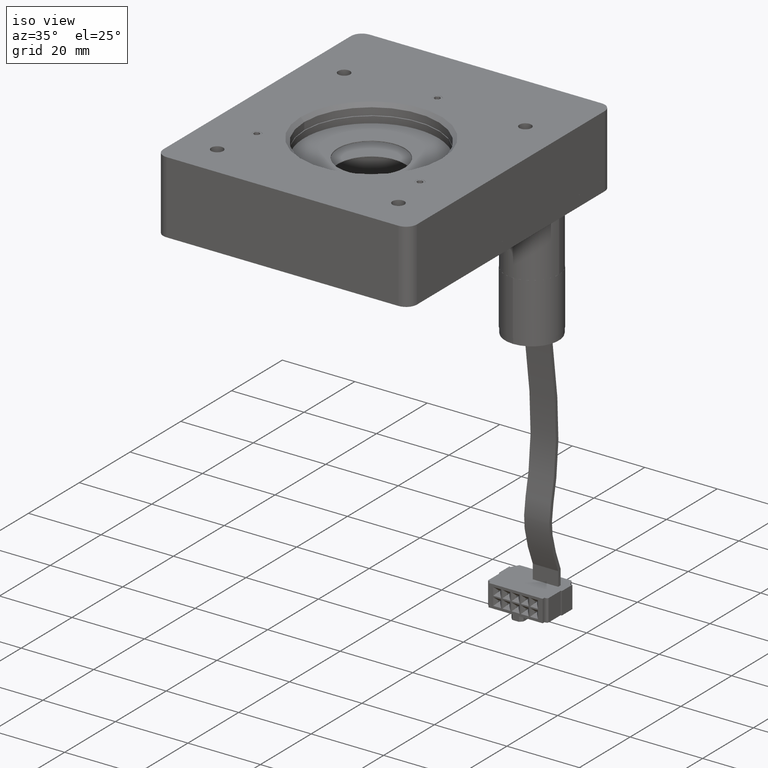
[diagram: clean part render]
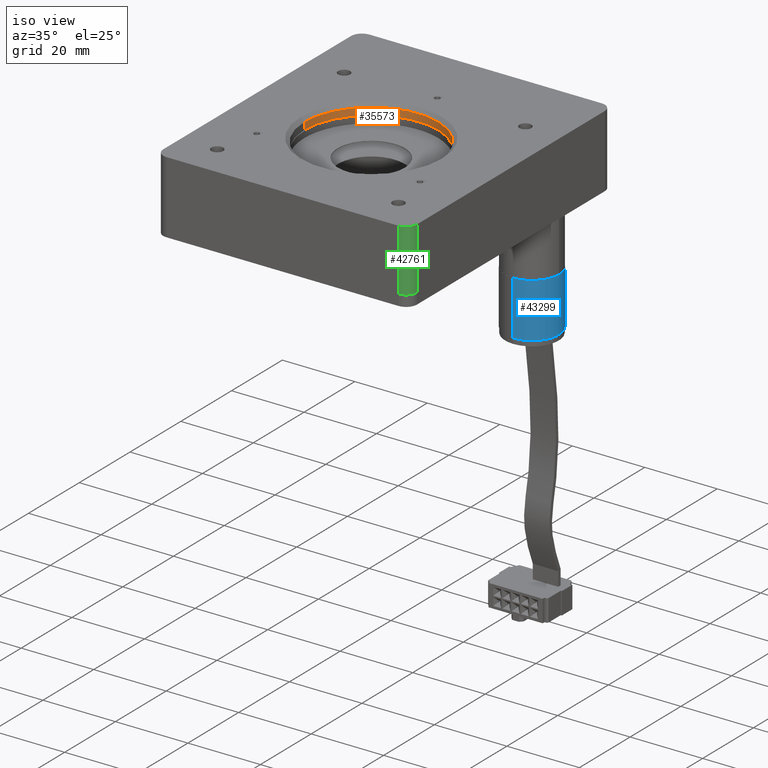
[diagram: same view with three faces highlighted in distinct colors, each labeled with its STEP entity id]
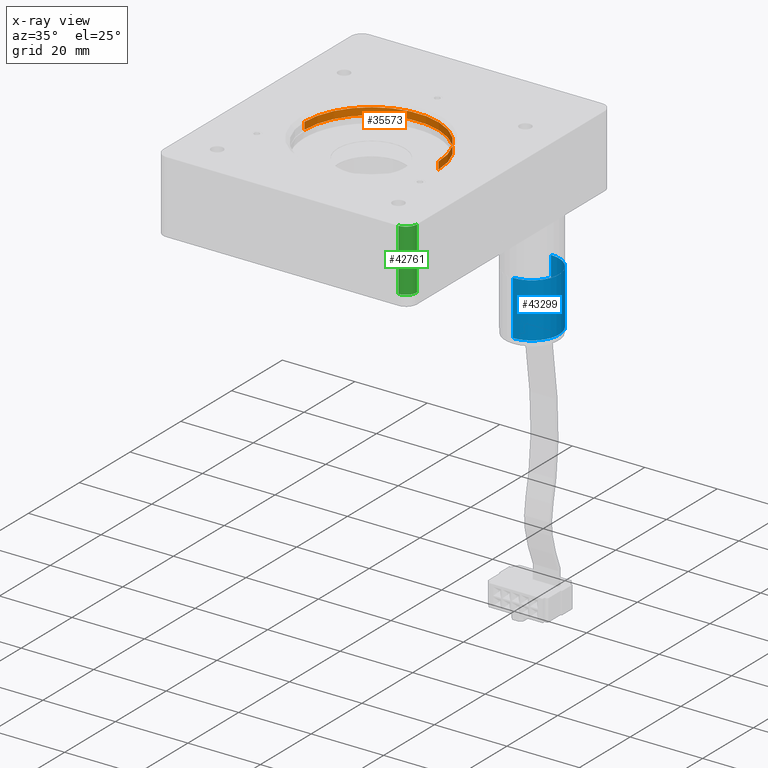
[diagram: x-ray of the same camera — body ghosted, the three highlighted faces saturated]
A machine part, iso view with three faces highlighted in distinct colors.
The next image is the same camera in x-ray (body ghosted, the three faces saturated) — at least one of them is partly hidden behind the body in this view.
Their STEP definitions:

[orange] entity #35573 — the highlighted cylindrical surface (partial cylindrical patch) has radius 18.5 mm, axis along (-0, -0, -1).
#2443 = AXIS2_PLACEMENT_3D ( 'NONE', #43356, #16360, #8199 ) ;
#2696 = CARTESIAN_POINT ( 'NONE',  ( -31.41903274966292900, 2.163028059219103600, 17.00100000002637700 ) ) ;
#3248 = LINE ( 'NONE', #2696, #26992 ) ;
#3707 = CIRCLE ( 'NONE', #2443, 18.49999999999999600 ) ;
#4503 = DIRECTION ( 'NONE',  ( -0.0000000000000000000, -0.0000000000000000000, 1.000000000000000000 ) ) ;
#7563 = CARTESIAN_POINT ( 'NONE',  ( -31.41903274966292900, 2.163028059219103600, 16.00000000002638200 ) ) ;
#8199 = DIRECTION ( 'NONE',  ( -1.000000000000000000, 0.0000000000000000000, 0.0000000000000000000 ) ) ;
#8612 = LINE ( 'NONE', #22527, #9819 ) ;
#9302 = AXIS2_PLACEMENT_3D ( 'NONE', #23959, #4503, #31823 ) ;
#9819 = VECTOR ( 'NONE', #18947, 1000.000000000000000 ) ;
#9863 = CIRCLE ( 'NONE', #9302, 18.50000000000000000 ) ;
#12003 = FACE_OUTER_BOUND ( 'NONE', #28861, .T. ) ;
#13663 = EDGE_CURVE ( 'NONE', #48982, #31465, #3248, .T. ) ;
#14546 = EDGE_CURVE ( 'NONE', #26986, #31465, #3707, .T. ) ;
#15108 = EDGE_CURVE ( 'NONE', #44031, #26986, #8612, .T. ) ;
#15971 = CARTESIAN_POINT ( 'NONE',  ( -31.41903274966292900, 2.163028059219103600, 14.00000000002637400 ) ) ;
#16360 = DIRECTION ( 'NONE',  ( -0.0000000000000000000, -0.0000000000000000000, 1.000000000000000000 ) ) ;
#16832 = DIRECTION ( 'NONE',  ( -0.0000000000000000000, -0.0000000000000000000, -1.000000000000000000 ) ) ;
#17904 = ORIENTED_EDGE ( 'NONE', *, *, #15108, .F. ) ;
#18947 = DIRECTION ( 'NONE',  ( -0.0000000000000000000, -0.0000000000000000000, -1.000000000000000000 ) ) ;
#19038 = ORIENTED_EDGE ( 'NONE', *, *, #14546, .F. ) ;
#21099 = DIRECTION ( 'NONE',  ( -1.000000000000000000, 0.0000000000000000000, 0.0000000000000000000 ) ) ;
#21778 = DIRECTION ( 'NONE',  ( -0.0000000000000000000, -0.0000000000000000000, -1.000000000000000000 ) ) ;
#22527 = CARTESIAN_POINT ( 'NONE',  ( 5.580967250337066000, 2.163028059219105800, 17.00100000002637700 ) ) ;
#23959 = CARTESIAN_POINT ( 'NONE',  ( -12.91903274966293200, 2.163028059219103600, 16.00000000002638200 ) ) ;
#26986 = VERTEX_POINT ( 'NONE', #30779 ) ;
#26992 = VECTOR ( 'NONE', #21778, 1000.000000000000000 ) ;
#28820 = EDGE_CURVE ( 'NONE', #44031, #48982, #9863, .T. ) ;
#28861 = EDGE_LOOP ( 'NONE', ( #17904, #46529, #42979, #19038 ) ) ;
#30558 = AXIS2_PLACEMENT_3D ( 'NONE', #48731, #16832, #21099 ) ;
#30669 = CARTESIAN_POINT ( 'NONE',  ( 5.580967250337066000, 2.163028059219105800, 16.00000000002638200 ) ) ;
#30779 = CARTESIAN_POINT ( 'NONE',  ( 5.580967250337066000, 2.163028059219105800, 14.00000000002637400 ) ) ;
#31465 = VERTEX_POINT ( 'NONE', #15971 ) ;
#31823 = DIRECTION ( 'NONE',  ( 1.000000000000000000, 0.0000000000000000000, 0.0000000000000000000 ) ) ;
#35573 = ADVANCED_FACE ( 'NONE', ( #12003 ), #49857, .F. ) ;
#42979 = ORIENTED_EDGE ( 'NONE', *, *, #13663, .T. ) ;
#43356 = CARTESIAN_POINT ( 'NONE',  ( -12.91903274966293200, 2.163028059219103600, 14.00000000002637400 ) ) ;
#44031 = VERTEX_POINT ( 'NONE', #30669 ) ;
#46529 = ORIENTED_EDGE ( 'NONE', *, *, #28820, .T. ) ;
#48731 = CARTESIAN_POINT ( 'NONE',  ( -12.91903274966293200, 2.163028059219103600, 17.00100000002637700 ) ) ;
#48982 = VERTEX_POINT ( 'NONE', #7563 ) ;
#49857 = CYLINDRICAL_SURFACE ( 'NONE', #30558, 18.49999999999999600 ) ;

[blue] entity #43299 — the highlighted cylindrical surface (edge-blend (fillet) strip) has radius 7.5 mm, axis along (0, -0, -1).
#225 = DIRECTION ( 'NONE',  ( -1.063288424787887300E-017, 6.030208312509493000E-017, 1.000000000000000000 ) ) ;
#983 = CARTESIAN_POINT ( 'NONE',  ( 9.651920938367990000, 25.72928064321712700, -35.89999999997362300 ) ) ;
#1287 = AXIS2_PLACEMENT_3D ( 'NONE', #15392, #46428, #27639 ) ;
#2620 = VECTOR ( 'NONE', #20012, 1000.000000000000000 ) ;
#2884 = FACE_OUTER_BOUND ( 'NONE', #12566, .T. ) ;
#3612 = DIRECTION ( 'NONE',  ( -3.006854025026460400E-015, 1.000000000000000000, 0.0000000000000000000 ) ) ;
#6778 = CARTESIAN_POINT ( 'NONE',  ( 9.651920938367990000, 25.72928064321711300, -20.89999999997357700 ) ) ;
#7213 = DIRECTION ( 'NONE',  ( 3.006854025026460400E-015, -1.000000000000000000, 0.0000000000000000000 ) ) ;
#8038 = CARTESIAN_POINT ( 'NONE',  ( 9.651920938367968700, 33.22928064321712300, -20.89999999997357700 ) ) ;
#10527 = DIRECTION ( 'NONE',  ( 1.063288424787887300E-017, -6.030208312509493000E-017, -1.000000000000000000 ) ) ;
#10956 = DIRECTION ( 'NONE',  ( 1.063288424787887300E-017, -6.030208312509493000E-017, -1.000000000000000000 ) ) ;
#11705 = AXIS2_PLACEMENT_3D ( 'NONE', #8038, #225, #3612 ) ;
#12160 = CARTESIAN_POINT ( 'NONE',  ( 9.651920938367945600, 40.72928064321713700, -20.89999999997357700 ) ) ;
#12547 = VECTOR ( 'NONE', #10527, 1000.000000000000000 ) ;
#12566 = EDGE_LOOP ( 'NONE', ( #49177, #30601, #32268, #36492 ) ) ;
#13879 = EDGE_CURVE ( 'NONE', #29125, #16137, #27572, .T. ) ;
#15062 = CIRCLE ( 'NONE', #1287, 7.500000000000013300 ) ;
#15392 = CARTESIAN_POINT ( 'NONE',  ( 9.651920938367968700, 33.22928064321712300, -35.89999999997362300 ) ) ;
#16137 = VERTEX_POINT ( 'NONE', #26753 ) ;
#17440 = LINE ( 'NONE', #6778, #12547 ) ;
#20012 = DIRECTION ( 'NONE',  ( 1.063288424787887300E-017, -6.030208312509493000E-017, -1.000000000000000000 ) ) ;
#20834 = EDGE_CURVE ( 'NONE', #44539, #29125, #34653, .T. ) ;
#20892 = EDGE_CURVE ( 'NONE', #26734, #16137, #15062, .T. ) ;
#21677 = EDGE_CURVE ( 'NONE', #44539, #26734, #17440, .T. ) ;
#22566 = CARTESIAN_POINT ( 'NONE',  ( 9.651920938367968700, 33.22928064321712300, -20.89999999997357700 ) ) ;
#26734 = VERTEX_POINT ( 'NONE', #983 ) ;
#26753 = CARTESIAN_POINT ( 'NONE',  ( 9.651920938367945600, 40.72928064321712300, -35.89999999997362300 ) ) ;
#27233 = AXIS2_PLACEMENT_3D ( 'NONE', #22566, #10956, #7213 ) ;
#27572 = LINE ( 'NONE', #12160, #2620 ) ;
#27639 = DIRECTION ( 'NONE',  ( -3.006854025026460400E-015, 1.000000000000000000, 0.0000000000000000000 ) ) ;
#29125 = VERTEX_POINT ( 'NONE', #34014 ) ;
#30601 = ORIENTED_EDGE ( 'NONE', *, *, #20834, .F. ) ;
#32268 = ORIENTED_EDGE ( 'NONE', *, *, #21677, .T. ) ;
#32740 = CYLINDRICAL_SURFACE ( 'NONE', #27233, 7.500000000000013300 ) ;
#34014 = CARTESIAN_POINT ( 'NONE',  ( 9.651920938367945600, 40.72928064321712300, -20.89999999997357700 ) ) ;
#34653 = CIRCLE ( 'NONE', #11705, 7.500000000000013300 ) ;
#36492 = ORIENTED_EDGE ( 'NONE', *, *, #20892, .T. ) ;
#42564 = CARTESIAN_POINT ( 'NONE',  ( 9.651920938367990000, 25.72928064321712700, -20.89999999997357700 ) ) ;
#43299 = ADVANCED_FACE ( 'NONE', ( #2884 ), #32740, .T. ) ;
#44539 = VERTEX_POINT ( 'NONE', #42564 ) ;
#46428 = DIRECTION ( 'NONE',  ( -1.063288424787887300E-017, 6.030208312509493000E-017, 1.000000000000000000 ) ) ;
#49177 = ORIENTED_EDGE ( 'NONE', *, *, #13879, .F. ) ;

[green] entity #42761 — the highlighted cylindrical surface (edge-blend (fillet) strip) has radius 3 mm, axis along (0, 0, -1).
#39 = CARTESIAN_POINT ( 'NONE',  ( 22.08096725033708600, -29.83697194078090600, 17.00000000002637500 ) ) ;
#130 = CARTESIAN_POINT ( 'NONE',  ( 22.08096725033708600, -29.83697194078090600, 17.00000000002637500 ) ) ;
#460 = AXIS2_PLACEMENT_3D ( 'NONE', #30647, #26690, #19211 ) ;
#1119 = CARTESIAN_POINT ( 'NONE',  ( 19.08096725033708200, -32.83697194078090600, 17.00000000002637500 ) ) ;
#3062 = VERTEX_POINT ( 'NONE', #17006 ) ;
#5671 = DIRECTION ( 'NONE',  ( -0.0000000000000000000, -0.0000000000000000000, 1.000000000000000000 ) ) ;
#5799 = AXIS2_PLACEMENT_3D ( 'NONE', #40010, #43932, #48329 ) ;
#7895 = EDGE_CURVE ( 'NONE', #29435, #29059, #48425, .T. ) ;
#11387 = VERTEX_POINT ( 'NONE', #39 ) ;
#11945 = EDGE_CURVE ( 'NONE', #29059, #3062, #12556, .T. ) ;
#12556 = LINE ( 'NONE', #1119, #45533 ) ;
#13899 = FACE_OUTER_BOUND ( 'NONE', #24680, .T. ) ;
#14718 = DIRECTION ( 'NONE',  ( 0.0000000000000000000, -0.0000000000000000000, -1.000000000000000000 ) ) ;
#17006 = CARTESIAN_POINT ( 'NONE',  ( 19.08096725033708200, -32.83697194078090600, 17.00000000002637500 ) ) ;
#19211 = DIRECTION ( 'NONE',  ( -1.000000000000000000, 0.0000000000000000000, 0.0000000000000000000 ) ) ;
#20458 = EDGE_CURVE ( 'NONE', #3062, #11387, #33482, .T. ) ;
#21066 = LINE ( 'NONE', #130, #38203 ) ;
#23030 = CYLINDRICAL_SURFACE ( 'NONE', #460, 2.999999999999999100 ) ;
#24577 = ORIENTED_EDGE ( 'NONE', *, *, #7895, .F. ) ;
#24680 = EDGE_LOOP ( 'NONE', ( #28218, #25717, #24577, #48203 ) ) ;
#25717 = ORIENTED_EDGE ( 'NONE', *, *, #11945, .F. ) ;
#26690 = DIRECTION ( 'NONE',  ( 0.0000000000000000000, 0.0000000000000000000, -1.000000000000000000 ) ) ;
#28218 = ORIENTED_EDGE ( 'NONE', *, *, #20458, .F. ) ;
#29059 = VERTEX_POINT ( 'NONE', #37964 ) ;
#29435 = VERTEX_POINT ( 'NONE', #31591 ) ;
#30647 = CARTESIAN_POINT ( 'NONE',  ( 19.08096725033708200, -29.83697194078090600, 17.00000000002637500 ) ) ;
#31346 = DIRECTION ( 'NONE',  ( 0.0000000000000000000, 0.0000000000000000000, -1.000000000000000000 ) ) ;
#31591 = CARTESIAN_POINT ( 'NONE',  ( 22.08096725033708600, -29.83697194078090600, 2.637473572875137500E-011 ) ) ;
#33482 = CIRCLE ( 'NONE', #5799, 2.999999999999999100 ) ;
#37964 = CARTESIAN_POINT ( 'NONE',  ( 19.08096725033708200, -32.83697194078090600, 2.637473572875137500E-011 ) ) ;
#38121 = CARTESIAN_POINT ( 'NONE',  ( 19.08096725033708200, -29.83697194078090600, 2.637473572875137500E-011 ) ) ;
#38203 = VECTOR ( 'NONE', #31346, 1000.000000000000000 ) ;
#40010 = CARTESIAN_POINT ( 'NONE',  ( 19.08096725033708200, -29.83697194078090600, 17.00000000002637500 ) ) ;
#42023 = DIRECTION ( 'NONE',  ( 1.000000000000000000, 0.0000000000000000000, 0.0000000000000000000 ) ) ;
#42761 = ADVANCED_FACE ( 'NONE', ( #13899 ), #23030, .T. ) ;
#43932 = DIRECTION ( 'NONE',  ( -0.0000000000000000000, 0.0000000000000000000, 1.000000000000000000 ) ) ;
#44172 = EDGE_CURVE ( 'NONE', #11387, #29435, #21066, .T. ) ;
#45348 = AXIS2_PLACEMENT_3D ( 'NONE', #38121, #14718, #42023 ) ;
#45533 = VECTOR ( 'NONE', #5671, 1000.000000000000000 ) ;
#48203 = ORIENTED_EDGE ( 'NONE', *, *, #44172, .F. ) ;
#48329 = DIRECTION ( 'NONE',  ( 1.000000000000000000, 0.0000000000000000000, 0.0000000000000000000 ) ) ;
#48425 = CIRCLE ( 'NONE', #45348, 2.999999999999999100 ) ;